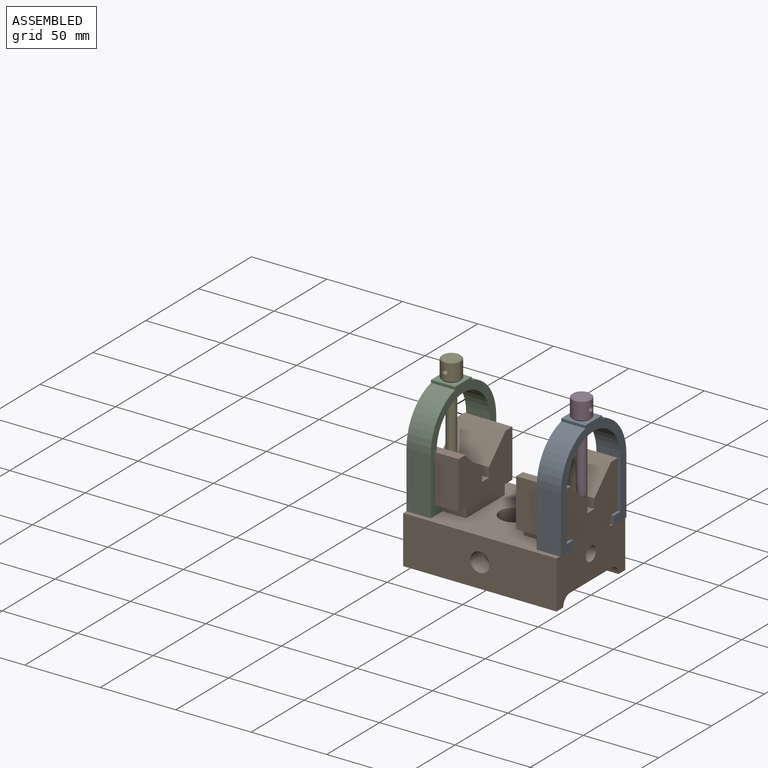
[diagram: assembled view]
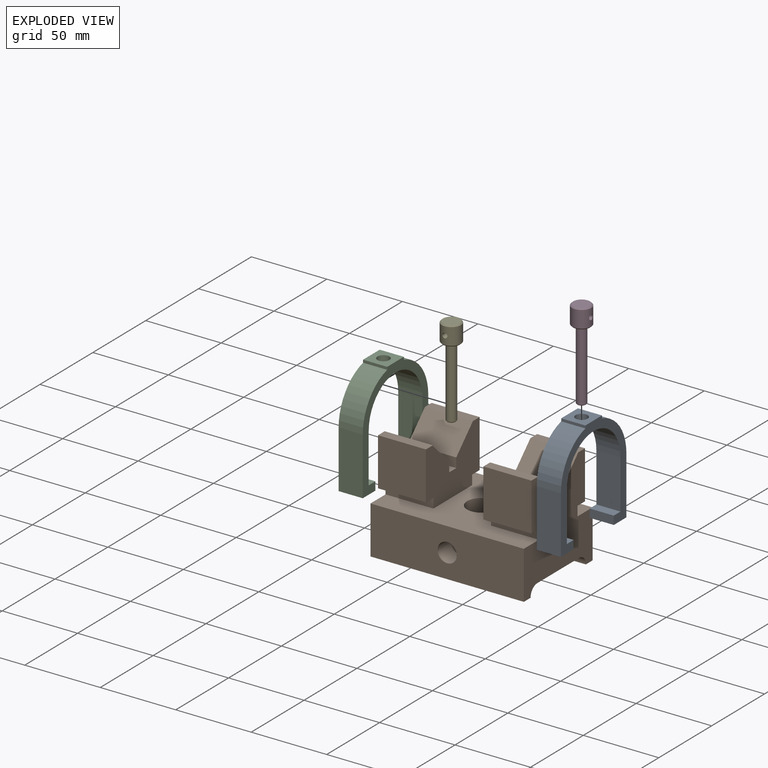
[diagram: exploded view]
GUIDED TOUR — MATED ASSEMBLY (Onshape document 00da13ae6c0043ad33732466, AutoMate assembly 00da13ae6c0043ad33732466_79b6f9a527e8e9c40f5da1ab_2ba141c66aaf4b11290b1e3a_default)

This assembly has 5 components, labeled P0..P4 below (a component is one placed occurrence of a part; the same part can appear more than once), held together by 4 mates. A mate is a constraint between two components; its type names the relative motion it leaves free:
  FASTENED — locks the two components together rigidly (no relative motion),
  SLIDER — leaves translation along the listed axis free.
Axis/direction vectors are unit vectors and 'through' points are millimeter coordinates, both in the assembly's world frame.

MATES
  1. FASTENED "Fastened 1": P0 <-> P3, direction (0.000, 0.000, 1.000) through (-7.24, 1.52, 69.85) mm
  2. SLIDER "Slider 1": P0 <-> P1, axis (-1.000, 0.000, 0.000) through (0.76, 32.51, 0.00) mm
  3. FASTENED "Fastened 2": P4 <-> P2, direction (0.000, 0.000, -1.000) through (-93.50, 1.52, 69.85) mm
  4. SLIDER "Slider 2": P1 <-> P2, axis (1.000, 0.000, 0.000) through (-101.60, 32.51, 0.00) mm

ASSEMBLY ORDER
  1. P2 — the base component [order verified]
  2. P1 [order verified]
  3. P0 [order verified]
  4. P4 [order verified]
  5. P3 [order verified]
Order-tag legend:
  [order verified] — this step's position reverses a verified removal order: the component was checked to insert without passing through the ones already placed.

Of the 5 components, 1 carries the full construction recipe — the FeatureScript program that regenerates the part's solid from scratch; the rest are supplied as boundary geometry only.
Each toured component is shown spotlighted twice — in the assembled view, then in the exploded view, where a leader line traces a displaced component back to its assembled socket (saturated green if recipe-attached, orange if geometry-only; every other component desaturated gray) — followed by its recipe or geometry summary and the mates that hold it.
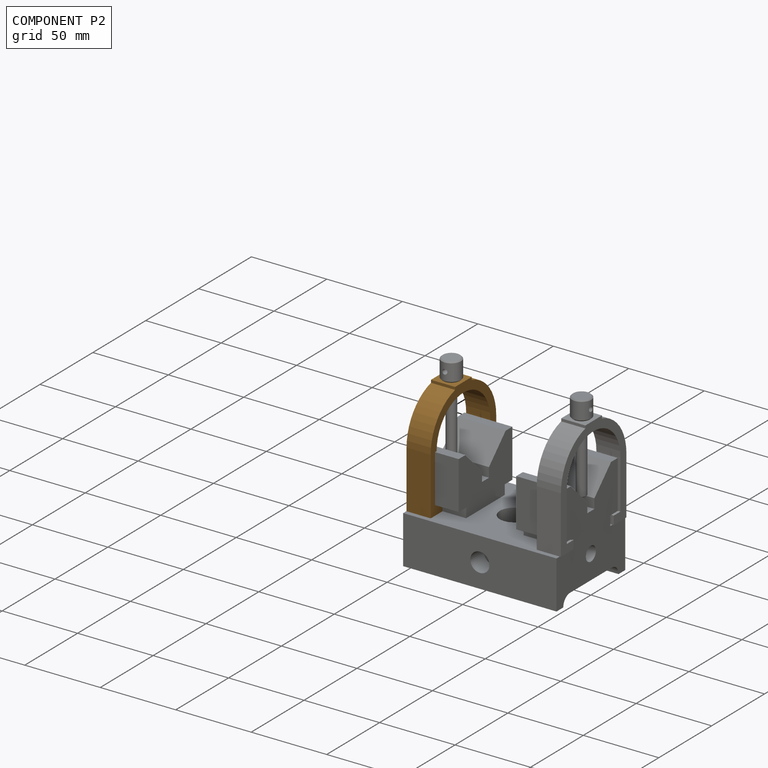
[diagram: component P2 — assembled]
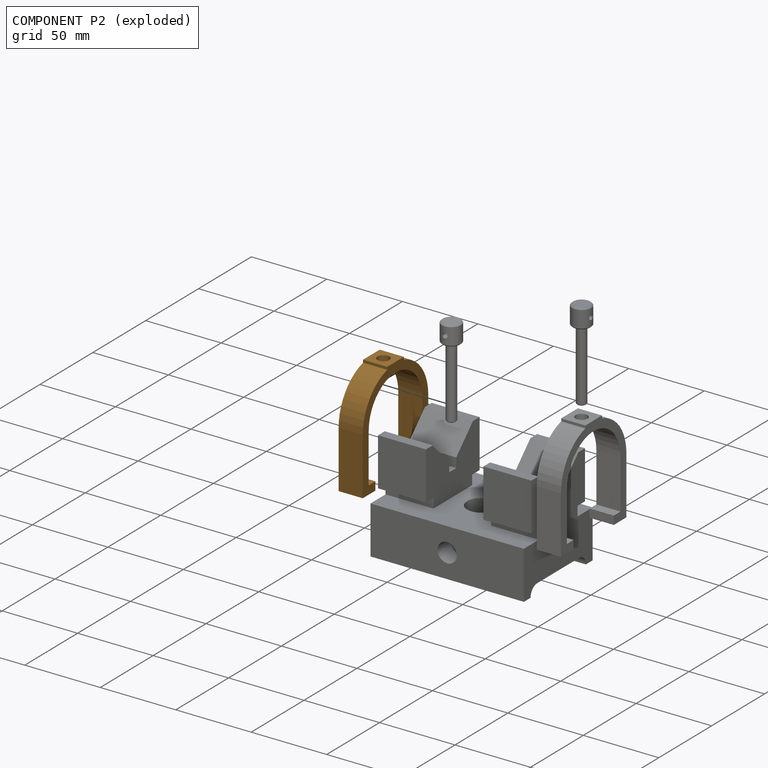
[diagram: component P2 — exploded]
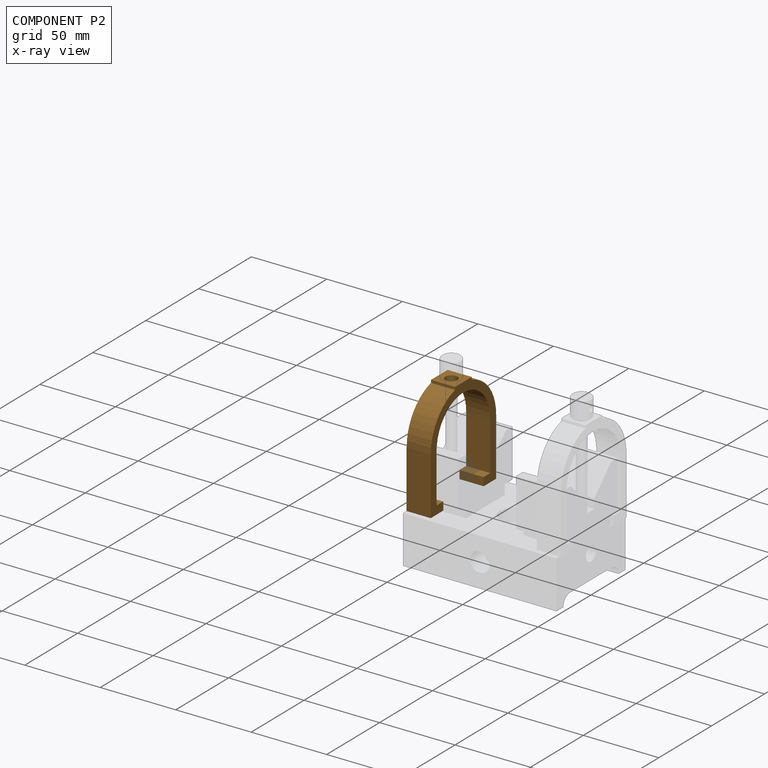
[diagram: component P2 — x-ray view]
COMPONENT P2 — geometry summary (no construction recipe available for this part):
  bounding box: 69.9 x 62.0 x 16.0 mm
  B-rep topology: 1 solid, 19 faces, 102 edges
  volume: 15826 mm^3 (23% of its bounding box)
  symmetry: 2-fold rotationally symmetric about the y axis; mirror-symmetric across its x mid-plane, z mid-plane
Held by: FASTENED mate "Fastened 2" to P4; SLIDER mate "Slider 2" to P1.
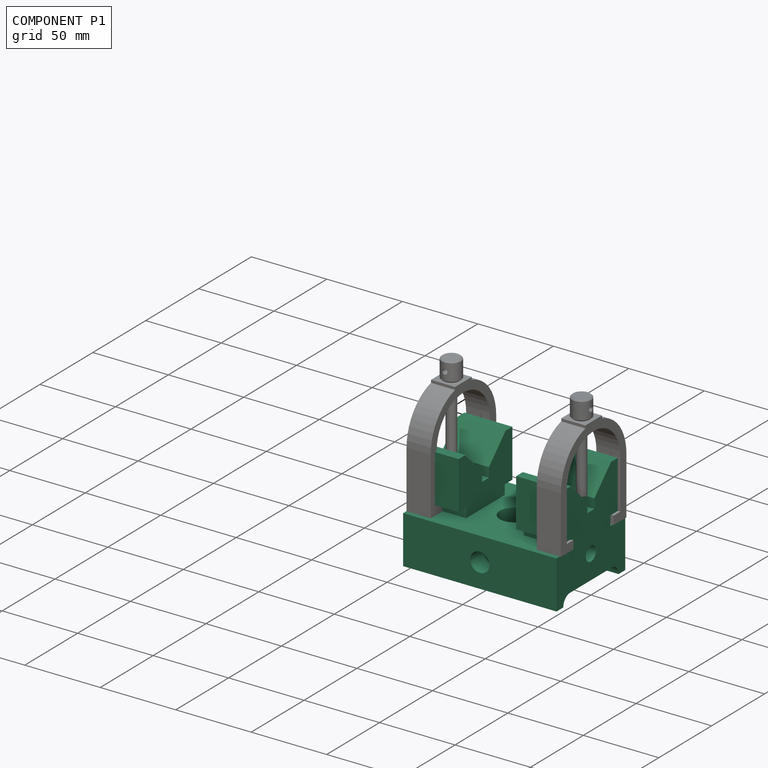
[diagram: component P1 — assembled]
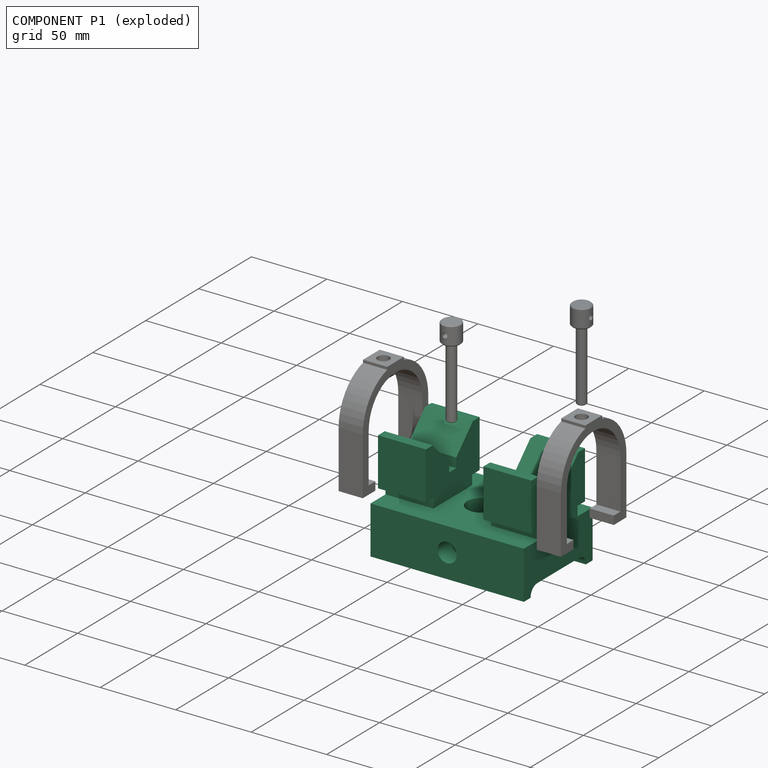
[diagram: component P1 — exploded]
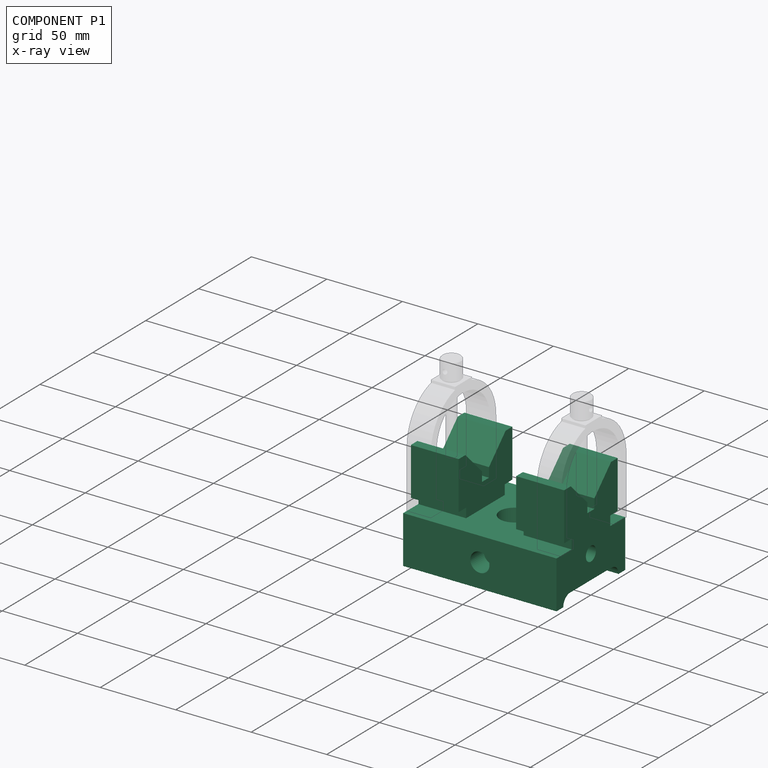
[diagram: component P1 — x-ray view]
COMPONENT P1 — recipe-attached (CADFS 00145572, mesh-verified: the recipe's output STEP matches this component's geometry to below the mesh-comparison resolution (tessellation chordal tolerance ~0.209 mm)).
Held by: SLIDER mate "Slider 1" to P0; SLIDER mate "Slider 2" to P2.
Construction recipe (FeatureScript — the CAD program that rebuilds this solid; sketch coordinates are in the units given by the * unit suffixes, e.g. mm):

FeatureScript 1511;
import(path : "onshape/std/geometry.fs", version : "1511.0");
import(path : "onshape/std/common.fs", version : "1511.0");
const mm = millimeter;
const VERTEX = EntityType.VERTEX;
const EDGE = EntityType.EDGE;
const FACE = EntityType.FACE;
const BODY = EntityType.BODY;
function v(x, y){return vector(x, y);}
function OD(order){return orderDisambiguation(order);}
function OSD(set){return originalSetDisambiguation(set);}
function TD(topology){return topologyDisambiguation(topology);}
function TDD(query){return trueDependencyDisambiguation(query);}
function sQuery(a, b, c) {return sketchEntityQuery(a, b, c);}

annotation { "Feature Type Name" : "Feature", "Feature Type Description" : "" }
export const myFeature = defineFeature(function(context is Context, id is Id, definition is map)
    precondition{}
    {
        {
            var Q0;
            Q0=qCreatedBy(makeId("Right.planeOp"),FACE);
            var sketch = newSketch(context, id + "F0", { "sketchPlane" : qUnion([Q0])});
            skLineSegment(sketch, "E0", {"start": v(-32.51, 0) * mm, "end": v(-32.51, -31.75) * mm});
            skLineSegment(sketch, "E1", {"start": v(-32.51, -31.75) * mm, "end": v(-26.16, -31.75) * mm});
            skLineSegment(sketch, "E2", {"start": v(-26.16, -31.75) * mm, "end": v(-26.16, -31.75) * mm});
            skLineSegment(sketch, "E3", {"start": v(-19.81, -25.4) * mm, "end": v(19.81, -25.4) * mm});
            skLineSegment(sketch, "E4", {"start": v(26.16, -31.75) * mm, "end": v(26.16, -31.75) * mm});
            skLineSegment(sketch, "E5", {"start": v(26.16, -31.75) * mm, "end": v(32.51, -31.75) * mm});
            skLineSegment(sketch, "E6", {"start": v(32.51, -31.75) * mm, "end": v(32.51, 0) * mm});
            skLineSegment(sketch, "E7", {"start": v(32.51, 0) * mm, "end": v(18.29, 0) * mm});
            skLineSegment(sketch, "E8", {"start": v(18.29, 0) * mm, "end": v(18.29, 6.35) * mm});
            skLineSegment(sketch, "E9", {"start": v(-32.51, 0) * mm, "end": v(-18.29, 0) * mm});
            skLineSegment(sketch, "E10", {"start": v(-18.29, 0) * mm, "end": v(-18.29, 6.35) * mm});
            skPoint(sketch, "E11", {"position": v(0, -25.4) * mm});
            skLineSegment(sketch, "E12", {"start": v(18.29, 6.35) * mm, "end": v(25.4, 6.35) * mm});
            skLineSegment(sketch, "E13", {"start": v(25.4, 6.35) * mm, "end": v(25.4, 38.1) * mm});
            skLineSegment(sketch, "E14", {"start": v(25.4, 38.1) * mm, "end": v(19.05, 38.1) * mm});
            skLineSegment(sketch, "E15", {"start": v(19.05, 38.1) * mm, "end": v(3.3, 22.35) * mm});
            skLineSegment(sketch, "E16", {"start": v(3.3, 22.35) * mm, "end": v(3.3, 16) * mm});
            skLineSegment(sketch, "E17", {"start": v(3.3, 16) * mm, "end": v(-3.3, 16) * mm});
            skLineSegment(sketch, "E18", {"start": v(-3.3, 16) * mm, "end": v(-3.3, 22.35) * mm});
            skLineSegment(sketch, "E19", {"start": v(-3.3, 22.35) * mm, "end": v(-19.05, 38.1) * mm});
            skLineSegment(sketch, "E20", {"start": v(-19.05, 38.1) * mm, "end": v(-25.4, 38.1) * mm});
            skLineSegment(sketch, "E21", {"start": v(-25.4, 38.1) * mm, "end": v(-25.4, 6.35) * mm});
            skLineSegment(sketch, "E22", {"start": v(-25.4, 6.35) * mm, "end": v(-18.29, 6.35) * mm});
            skPoint(sketch, "E23", {"position": v(0, 16) * mm});
            skPoint(sketch, "E24.visualSharp", {"position": v(-26.16, -25.4) * mm});
            skArc(sketch, "E24.filletArc", {"start": v(-19.81, -25.4) * mm, "mid": v(-24.3, -27.26) * mm, "end": v(-26.16, -31.75) * mm});
            skPoint(sketch, "E25.visualSharp", {"position": v(26.16, -25.4) * mm});
            skArc(sketch, "E25.filletArc", {"start": v(26.16, -31.75) * mm, "mid": v(24.3, -27.26) * mm, "end": v(19.81, -25.4) * mm});
            skSolve(sketch);
        }
        {
            var Q0;
            Q0 = qSketchRegion(id + "F0", true);
            extrude(context, id + "F1", {"entities" : qUnion([Q0]), "oppositeDirection" : true, "depth" : 101.6 * mm});
        }
        {
            var Q0;
            Q0=makeQuery(id+"F1.opExtrude","CAP_FACE",FACE,{"disambiguationData":[OSD([sQuery(id+"F0.wireOp",EDGE,"E0"),sQuery(id+"F0.wireOp",EDGE,"E1"),sQuery(id+"F0.wireOp",EDGE,"E2"),sQuery(id+"F0.wireOp",EDGE,"E3"),sQuery(id+"F0.wireOp",EDGE,"E4"),sQuery(id+"F0.wireOp",EDGE,"E5"),sQuery(id+"F0.wireOp",EDGE,"E6"),sQuery(id+"F0.wireOp",EDGE,"E7"),sQuery(id+"F0.wireOp",EDGE,"E8"),sQuery(id+"F0.wireOp",EDGE,"E9"),sQuery(id+"F0.wireOp",EDGE,"E10"),sQuery(id+"F0.wireOp",EDGE,"E12"),sQuery(id+"F0.wireOp",EDGE,"E13"),sQuery(id+"F0.wireOp",EDGE,"E14"),sQuery(id+"F0.wireOp",EDGE,"E15"),sQuery(id+"F0.wireOp",EDGE,"E16"),sQuery(id+"F0.wireOp",EDGE,"E17"),sQuery(id+"F0.wireOp",EDGE,"E18"),sQuery(id+"F0.wireOp",EDGE,"E19"),sQuery(id+"F0.wireOp",EDGE,"E20"),sQuery(id+"F0.wireOp",EDGE,"E21"),sQuery(id+"F0.wireOp",EDGE,"E22")])],"isStart":true});
            var sketch = newSketch(context, id + "F2", { "sketchPlane" : qUnion([Q0])});
            skPoint(sketch, "E26", {"position": v(0, -9.52) * mm});
            skCircle(sketch, "E27", {"center": v(0, -9.52) * mm, "radius": 4.76 * mm});
            skSolve(sketch);
        }
        {
            var Q0;
            Q0=sQuery(id+"F2.wireOp",VERTEX,"E26");
            var Q1;
            Q1=makeQuery(id+"F1.opExtrude","SWEPT_BODY",BODY,{"disambiguationData":[OSD([sQuery(id+"F0.wireOp",EDGE,"E0"),sQuery(id+"F0.wireOp",EDGE,"E1"),sQuery(id+"F0.wireOp",EDGE,"E2"),sQuery(id+"F0.wireOp",EDGE,"E3"),sQuery(id+"F0.wireOp",EDGE,"E4"),sQuery(id+"F0.wireOp",EDGE,"E5"),sQuery(id+"F0.wireOp",EDGE,"E6"),sQuery(id+"F0.wireOp",EDGE,"E7"),sQuery(id+"F0.wireOp",EDGE,"E8"),sQuery(id+"F0.wireOp",EDGE,"E9"),sQuery(id+"F0.wireOp",EDGE,"E10"),sQuery(id+"F0.wireOp",EDGE,"E12"),sQuery(id+"F0.wireOp",EDGE,"E13"),sQuery(id+"F0.wireOp",EDGE,"E14"),sQuery(id+"F0.wireOp",EDGE,"E15"),sQuery(id+"F0.wireOp",EDGE,"E16"),sQuery(id+"F0.wireOp",EDGE,"E17"),sQuery(id+"F0.wireOp",EDGE,"E18"),sQuery(id+"F0.wireOp",EDGE,"E19"),sQuery(id+"F0.wireOp",EDGE,"E20"),sQuery(id+"F0.wireOp",EDGE,"E21"),sQuery(id+"F0.wireOp",EDGE,"E22")])]});
            hole(context, id + "F3", {"style" : HoleStyle.C_BORE, "endStyle" : HoleEndStyle.BLIND, "holeDiameter" : 9.52 * mm, "cBoreDiameter" : 9.52 * mm, "cBoreDepth" : 9.52 * mm, "holeDepth" : 15.88 * mm, "startFromSketch" : true, "locations" : qUnion([Q0]), "scope" : qUnion([Q1])});
        }
        {
            var Q0;
            Q0=makeQuery(id+"F1.opExtrude","SWEPT_FACE",FACE,{"disambiguationData":[OSD([sQuery(id+"F0.wireOp",EDGE,"E0")])]});
            var sketch = newSketch(context, id + "F4", { "sketchPlane" : qUnion([Q0])});
            skPoint(sketch, "E28", {"position": v(-50.8, -15.87) * mm});
            skCircle(sketch, "E29", {"center": v(-50.8, -15.87) * mm, "radius": 4.76 * mm});
            skSolve(sketch);
        }
        {
            var Q0;
            Q0=sQuery(id+"F4.wireOp",VERTEX,"E28");
            var Q1;
            Q1=makeQuery(id+"F1.opExtrude","SWEPT_BODY",BODY,{"disambiguationData":[OSD([sQuery(id+"F0.wireOp",EDGE,"E0"),sQuery(id+"F0.wireOp",EDGE,"E1"),sQuery(id+"F0.wireOp",EDGE,"E2"),sQuery(id+"F0.wireOp",EDGE,"E3"),sQuery(id+"F0.wireOp",EDGE,"E4"),sQuery(id+"F0.wireOp",EDGE,"E5"),sQuery(id+"F0.wireOp",EDGE,"E6"),sQuery(id+"F0.wireOp",EDGE,"E7"),sQuery(id+"F0.wireOp",EDGE,"E8"),sQuery(id+"F0.wireOp",EDGE,"E9"),sQuery(id+"F0.wireOp",EDGE,"E10"),sQuery(id+"F0.wireOp",EDGE,"E12"),sQuery(id+"F0.wireOp",EDGE,"E13"),sQuery(id+"F0.wireOp",EDGE,"E14"),sQuery(id+"F0.wireOp",EDGE,"E15"),sQuery(id+"F0.wireOp",EDGE,"E16"),sQuery(id+"F0.wireOp",EDGE,"E17"),sQuery(id+"F0.wireOp",EDGE,"E18"),sQuery(id+"F0.wireOp",EDGE,"E19"),sQuery(id+"F0.wireOp",EDGE,"E20"),sQuery(id+"F0.wireOp",EDGE,"E21"),sQuery(id+"F0.wireOp",EDGE,"E22")])]});
            hole(context, id + "F5", {"style" : HoleStyle.C_BORE, "endStyle" : HoleEndStyle.THROUGH, "holeDiameter" : 9.52 * mm, "cBoreDiameter" : 12.7 * mm, "cBoreDepth" : 12.7 * mm, "startFromSketch" : true, "locations" : qUnion([Q0]), "scope" : qUnion([Q1]), "isTappedThrough" : true});
        }
        {
            var Q0;
            Q0=makeQuery(id+"F1.opExtrude","SWEPT_FACE",FACE,{"disambiguationData":[OSD([sQuery(id+"F0.wireOp",EDGE,"E21")])]});
            var sketch = newSketch(context, id + "F6", { "sketchPlane" : qUnion([Q0])});
            skLineSegment(sketch, "E30.bottom", {"start": v(-69.85, 38.1) * mm, "end": v(-31.75, 38.1) * mm});
            skLineSegment(sketch, "E30.top", {"start": v(-69.85, 0) * mm, "end": v(-31.75, 0) * mm});
            skLineSegment(sketch, "E30.left", {"start": v(-69.85, 38.1) * mm, "end": v(-69.85, 0) * mm});
            skLineSegment(sketch, "E30.right", {"start": v(-31.75, 38.1) * mm, "end": v(-31.75, 0) * mm});
            skLineSegment(sketch, "E31", {"start": v(-50.8, 38.1) * mm, "end": v(-50.8, -31.75) * mm, "construction": true});
            skSolve(sketch);
        }
        {
            var Q0;
            Q0 = qSketchRegion(id + "F6", true);
            extrude(context, id + "F7", {"entities" : qUnion([Q0]), "operationType" : NewBodyOperationType.REMOVE, "endBound" : BoundingType.THROUGH_ALL, "oppositeDirection" : true, "depth" : 25.4 * mm});
        }
        {
            var Q0;
            Q0=makeQuery(id+"F7.boolean.opBoolean","MERGE",FACE,{"derivedFrom":[makeQuery(id+"F1.opExtrude","SWEPT_FACE",FACE,{"disambiguationData":[OSD([sQuery(id+"F0.wireOp",EDGE,"E7")])]}),makeQuery(id+"F1.opExtrude","SWEPT_FACE",FACE,{"disambiguationData":[OSD([sQuery(id+"F0.wireOp",EDGE,"E9")])]}),makeQuery(id+"F7.opExtrude","SWEPT_FACE",FACE,{"disambiguationData":[OSD([sQuery(id+"F6.wireOp",EDGE,"E30.top")])]})]});
            var sketch = newSketch(context, id + "F8", { "sketchPlane" : qUnion([Q0])});
            skPoint(sketch, "E32", {"position": v(-50.8, 0) * mm});
            skCircle(sketch, "E33", {"center": v(-50.8, 0) * mm, "radius": 9.53 * mm});
            skPoint(sketch, "E34", {"position": v(-50.8, 32.51) * mm});
            skLineSegment(sketch, "E35", {"start": v(-50.8, 32.51) * mm, "end": v(-50.8, -32.51) * mm, "construction": true});
            skSolve(sketch);
        }
        {
            var Q0;
            Q0 = qSketchRegion(id + "F8", true);
            extrude(context, id + "F9", {"entities" : qUnion([Q0]), "operationType" : NewBodyOperationType.REMOVE, "endBound" : BoundingType.THROUGH_ALL, "oppositeDirection" : true, "depth" : 25.4 * mm});
        }
    });
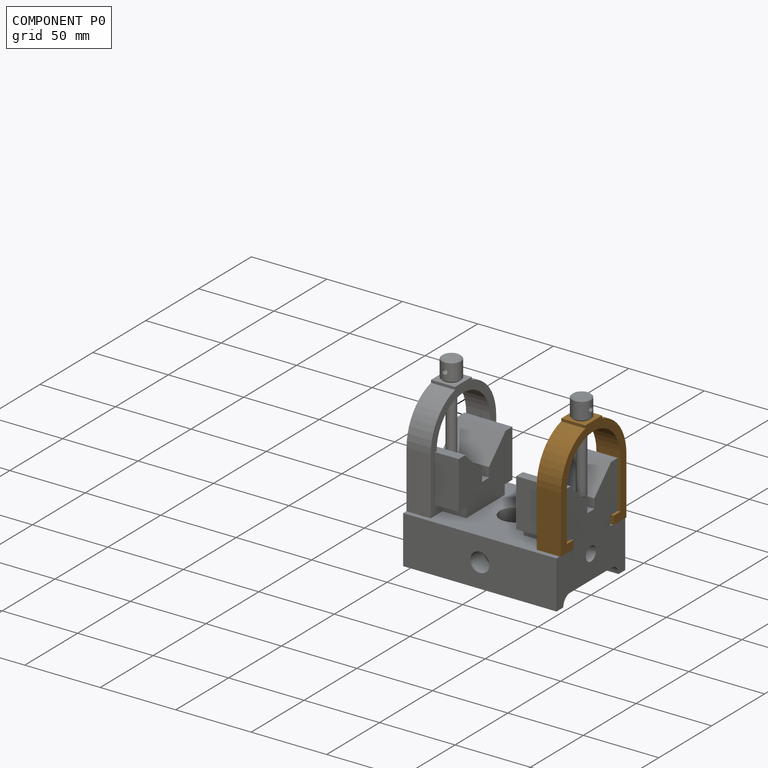
[diagram: component P0 — assembled]
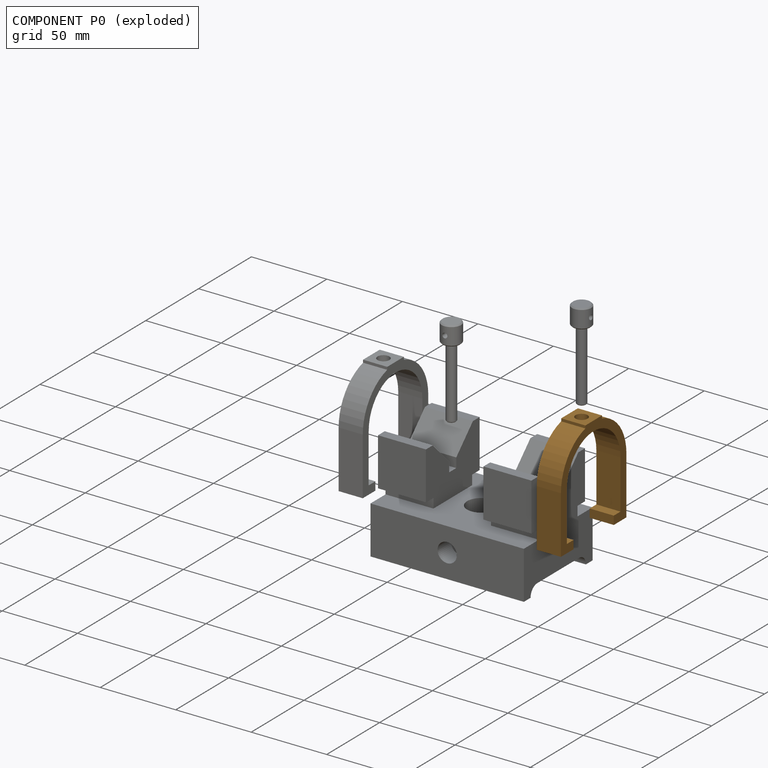
[diagram: component P0 — exploded]
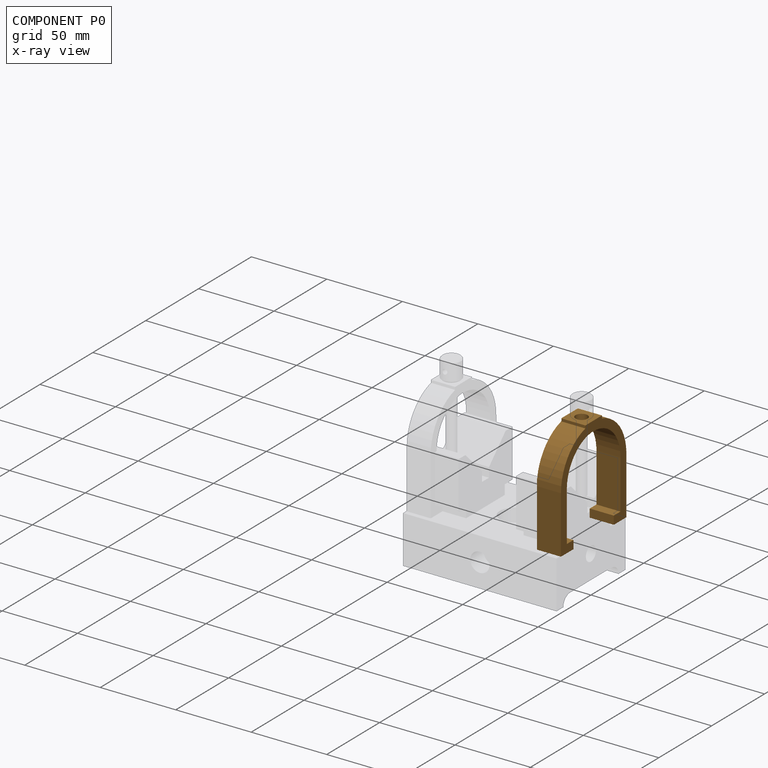
[diagram: component P0 — x-ray view]
COMPONENT P0 — geometry summary (no construction recipe available for this part):
  bounding box: 69.9 x 62.0 x 16.0 mm
  B-rep topology: 1 solid, 19 faces, 102 edges
  volume: 15826 mm^3 (23% of its bounding box)
  symmetry: 2-fold rotationally symmetric about the y axis; mirror-symmetric across its x mid-plane, z mid-plane
Held by: FASTENED mate "Fastened 1" to P3; SLIDER mate "Slider 1" to P1.
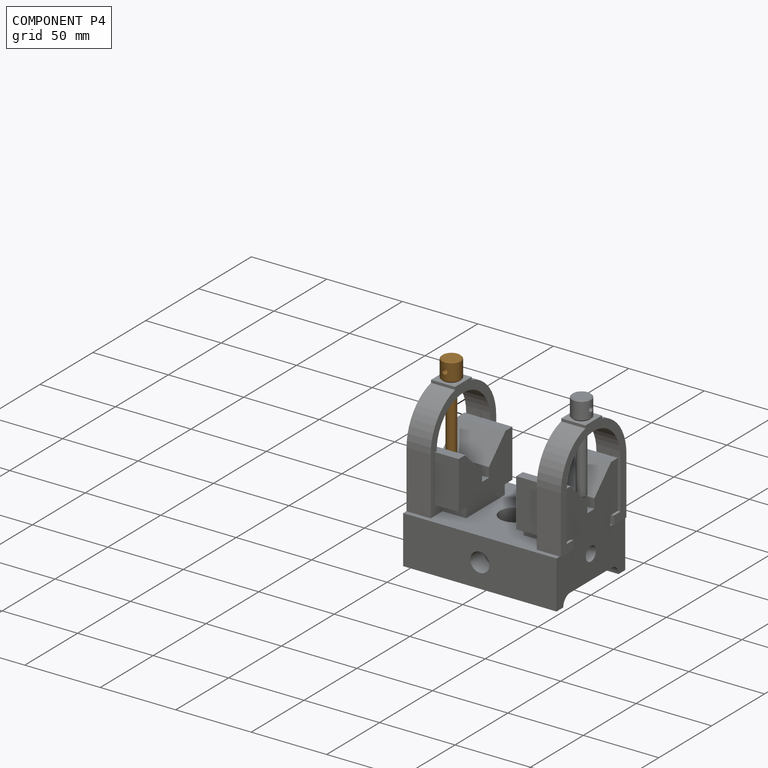
[diagram: component P4 — assembled]
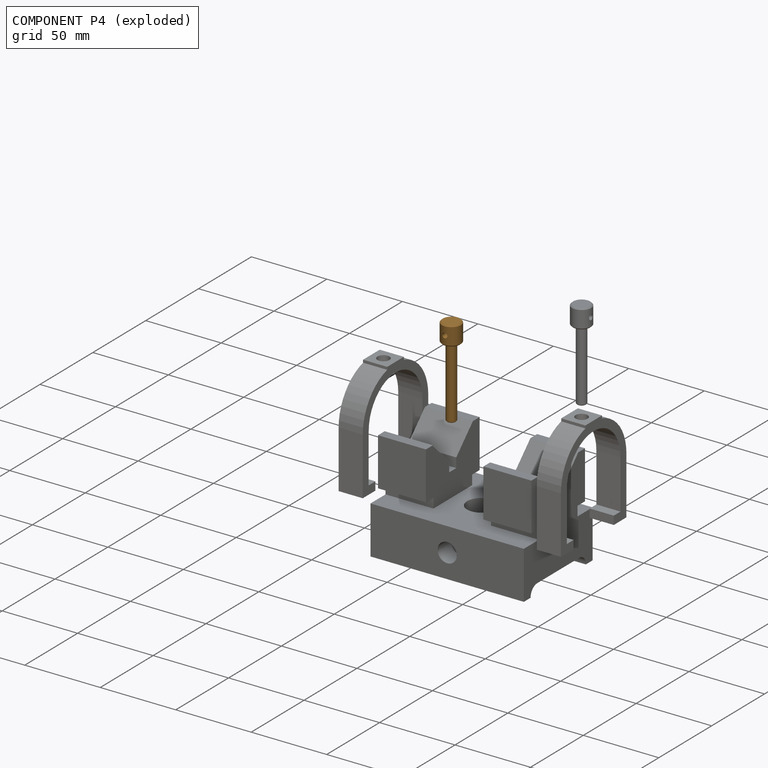
[diagram: component P4 — exploded]
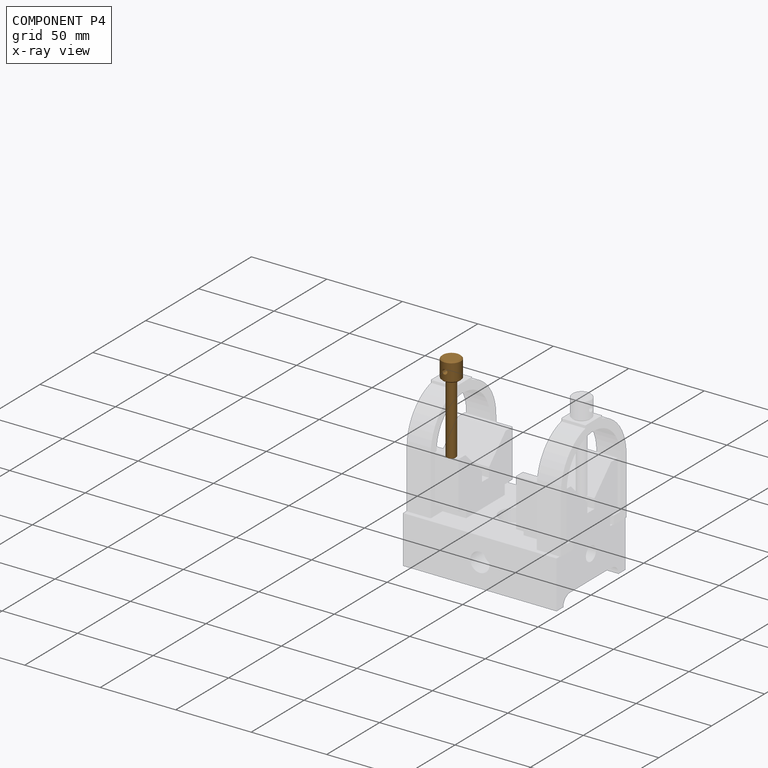
[diagram: component P4 — x-ray view]
COMPONENT P4 — geometry summary (no construction recipe available for this part):
  bounding box: 59.7 x 12.7 x 12.7 mm
  B-rep topology: 1 solid, 9 faces, 34 edges
  volume: 2964 mm^3 (31% of its bounding box)
  symmetry: 2-fold rotationally symmetric about the y axis; mirror-symmetric across its x mid-plane, z mid-plane
Held by: FASTENED mate "Fastened 2" to P2.
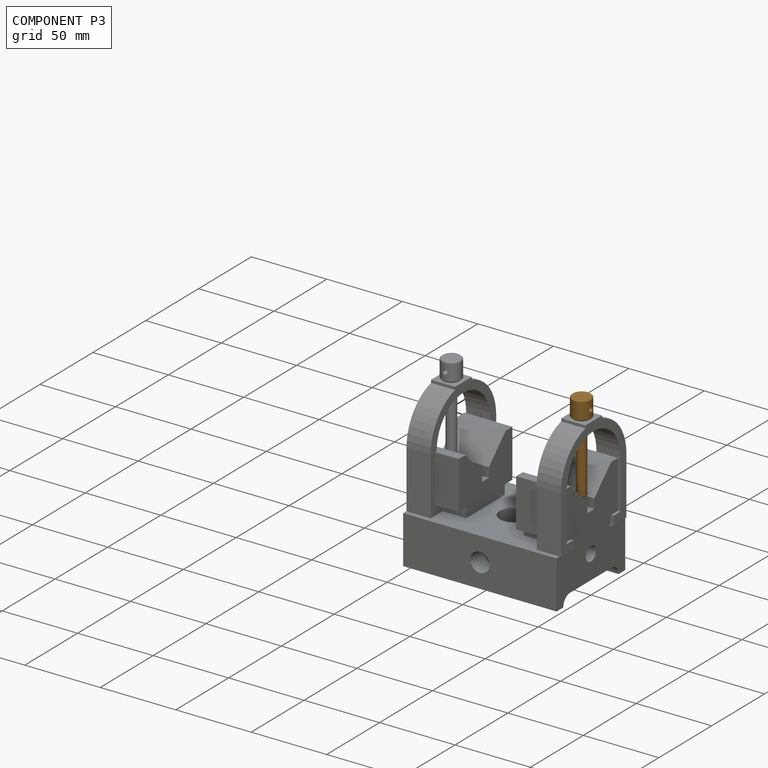
[diagram: component P3 — assembled]
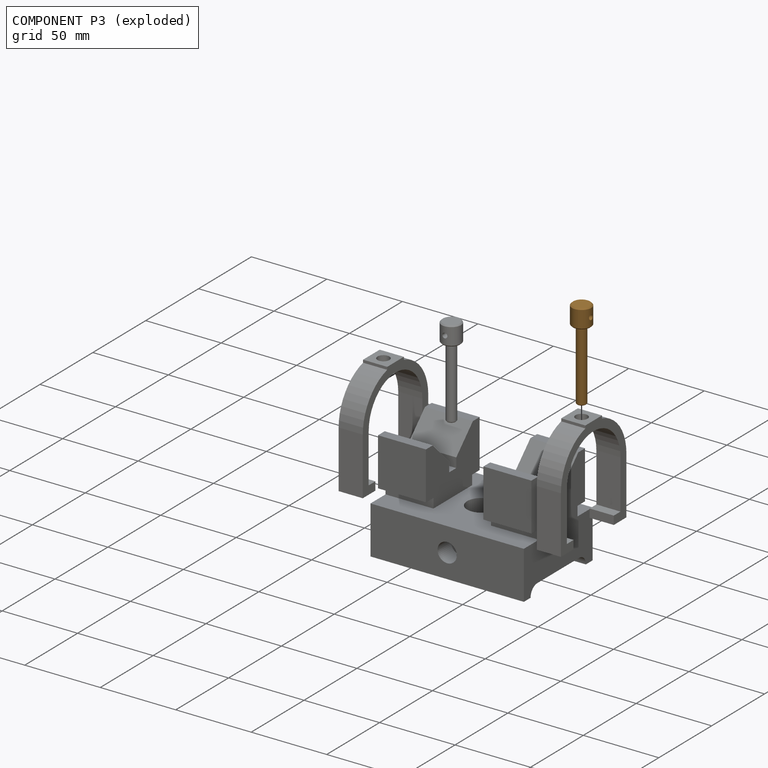
[diagram: component P3 — exploded]
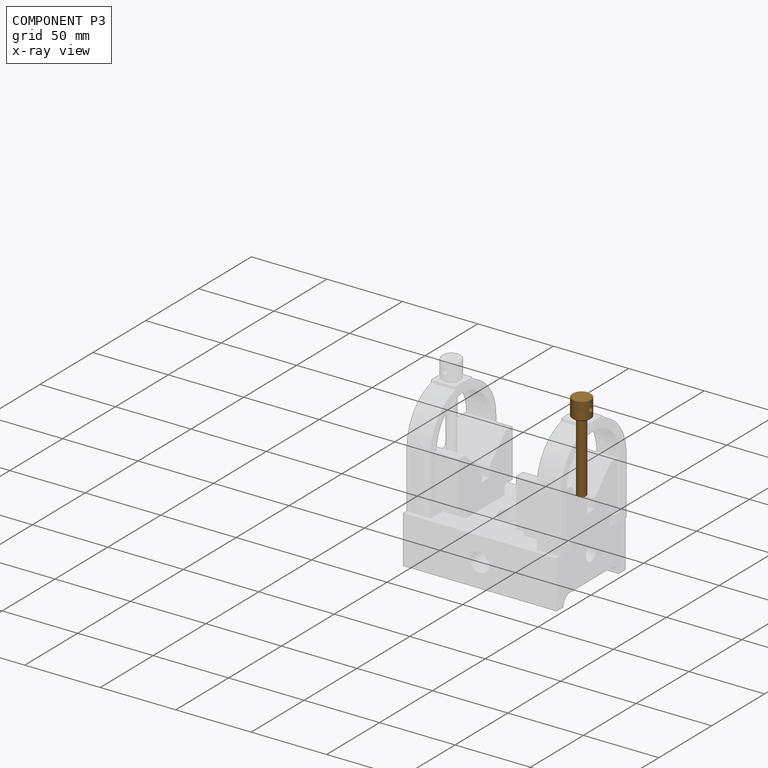
[diagram: component P3 — x-ray view]
COMPONENT P3 — geometry summary (no construction recipe available for this part):
  bounding box: 59.7 x 12.7 x 12.7 mm
  B-rep topology: 1 solid, 9 faces, 34 edges
  volume: 2964 mm^3 (31% of its bounding box)
  symmetry: 2-fold rotationally symmetric about the y axis; mirror-symmetric across its x mid-plane, z mid-plane
Held by: FASTENED mate "Fastened 1" to P0.
PROVENANCE & LICENSES
Assembly (occurrences, transforms, mates, per-part STEP geometry): AutoMate dataset, Zenodo record 7776208, CC0.
Construction recipes: CADFS (HuggingFace VladPyatov/CADFS, CC-BY-4.0, layered over the ABC dataset), FeatureScript reconstruction programs keyed by ABC model id.
Join: ABC meta listings map ABC model id -> Onshape documentId; within a shared document, parts are matched by geometric signature (bounding-box dims + volume at 0.1% relative tolerance, exact B-rep face/solid counts).
Verification: 1 of this assembly's 5 components carries a recipe attachment, and every attachment is mesh-verified: the CADFS STEP and the AutoMate member STEP were compared as meshes in their shared local frame (symmetric sampled-point-to-mesh distance); worst across the 1 attachment: below the mesh-comparison resolution (tessellation chordal tolerance ~0.209 mm) on a 139 mm part.
Renders: orthographic iso camera (az 35 / el 25); the floor grid conveys scale (grid pitch printed in each image; no ruler). In the exploded view each component is displaced by its stored offset vector: the offsets alone carry the explosion direction (mate normal/axis signs are not orientation cues and do not encode it), and separation distances are assigned per mate-chain, not proportionally to assembly-order depth.
